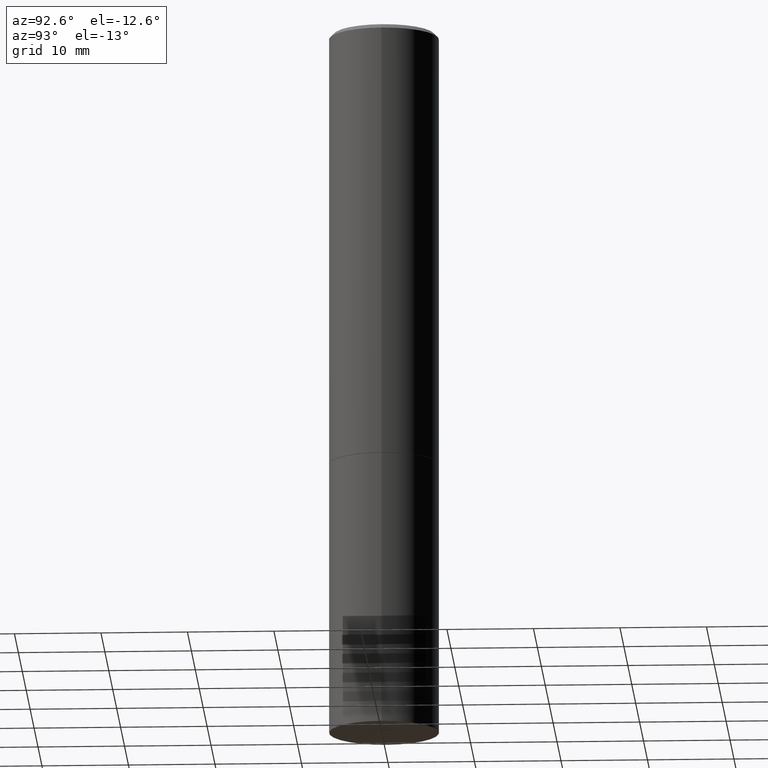
[diagram: clean part render]
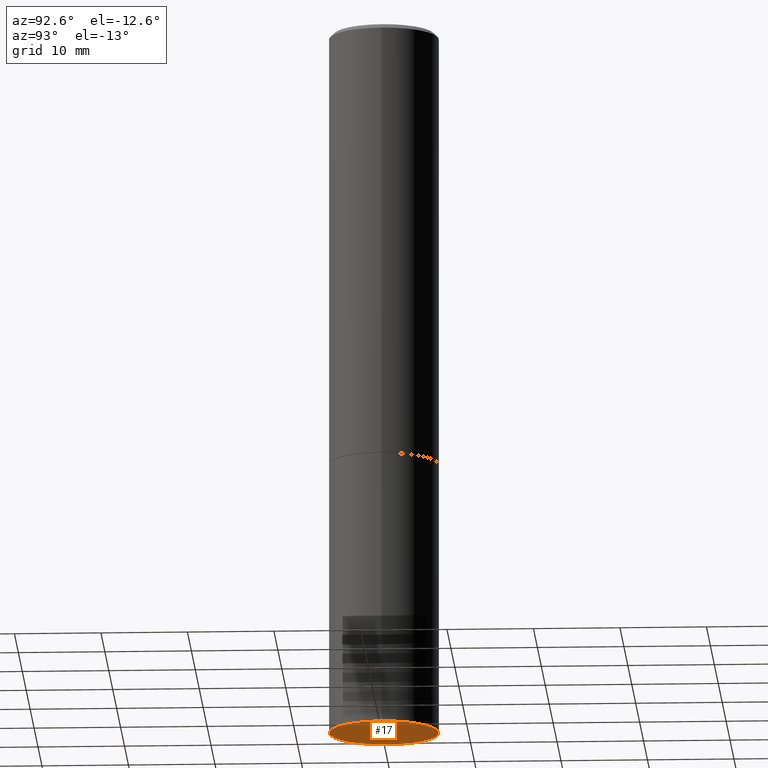
[diagram: same view with one face highlighted and labeled with its STEP entity id]
A machine part, auxiliary view. The second image highlights one B-rep face of the part: STEP entity #17.
In plain terms, the highlighted planar face has unit normal (0, -0, -1).
Its self-contained STEP definition (entity closure, byte-faithful):
#9 = CARTESIAN_POINT ( 'NONE',  ( 7.947773620101693940E-29, -1.134731435124022443E-14, -3.250000000000000000 ) ) ;
#17 = ADVANCED_FACE ( 'NONE', ( #133 ), #226, .T. ) ;
#20 = CARTESIAN_POINT ( 'NONE',  ( 1.745740669421645958E-15, 0.2499999999999886480, -3.250000000000001332 ) ) ;
#32 = ORIENTED_EDGE ( 'NONE', *, *, #213, .F. ) ;
#55 = EDGE_LOOP ( 'NONE', ( #32, #297 ) ) ;
#70 = CIRCLE ( 'NONE', #351, 0.2500000000000000000 ) ;
#72 = CARTESIAN_POINT ( 'NONE',  ( -0.2500000000000000000, -7.388781675063007725E-15, -3.250000000000000000 ) ) ;
#78 = VERTEX_POINT ( 'NONE', #72 ) ;
#107 = DIRECTION ( 'NONE',  ( 2.438088387897960049E-29, -3.491481338843145188E-15, -1.000000000000000000 ) ) ;
#115 = DIRECTION ( 'NONE',  ( 1.000000000000000000, -6.982962677686262766E-15, 0.000000000000000000 ) ) ;
#133 = FACE_OUTER_BOUND ( 'NONE', #55, .T. ) ;
#139 = DIRECTION ( 'NONE',  ( -1.000000000000000000, 6.982962677686265922E-15, -4.876176775795935793E-29 ) ) ;
#141 = CIRCLE ( 'NONE', #326, 0.2500000000000000000 ) ;
#152 = DIRECTION ( 'NONE',  ( 1.000000000000000000, -6.982962677686262766E-15, 0.000000000000000000 ) ) ;
#213 = EDGE_CURVE ( 'NONE', #269, #78, #70, .T. ) ;
#221 = CARTESIAN_POINT ( 'NONE',  ( 7.947773620101693940E-29, -1.134731435124022443E-14, -3.250000000000000000 ) ) ;
#226 = PLANE ( 'NONE',  #278 ) ;
#227 = EDGE_CURVE ( 'NONE', #78, #269, #141, .T. ) ;
#250 = CARTESIAN_POINT ( 'NONE',  ( 0.2500000000000000000, -1.309305502066178953E-14, -3.250000000000000000 ) ) ;
#269 = VERTEX_POINT ( 'NONE', #250 ) ;
#278 = AXIS2_PLACEMENT_3D ( 'NONE', #20, #107, #139 ) ;
#297 = ORIENTED_EDGE ( 'NONE', *, *, #227, .F. ) ;
#322 = DIRECTION ( 'NONE',  ( -2.445468806185136597E-29, 3.491481338843145583E-15, 1.000000000000000000 ) ) ;
#326 = AXIS2_PLACEMENT_3D ( 'NONE', #221, #322, #115 ) ;
#344 = DIRECTION ( 'NONE',  ( -2.445468806185136597E-29, 3.491481338843145583E-15, 1.000000000000000000 ) ) ;
#351 = AXIS2_PLACEMENT_3D ( 'NONE', #9, #344, #152 ) ;